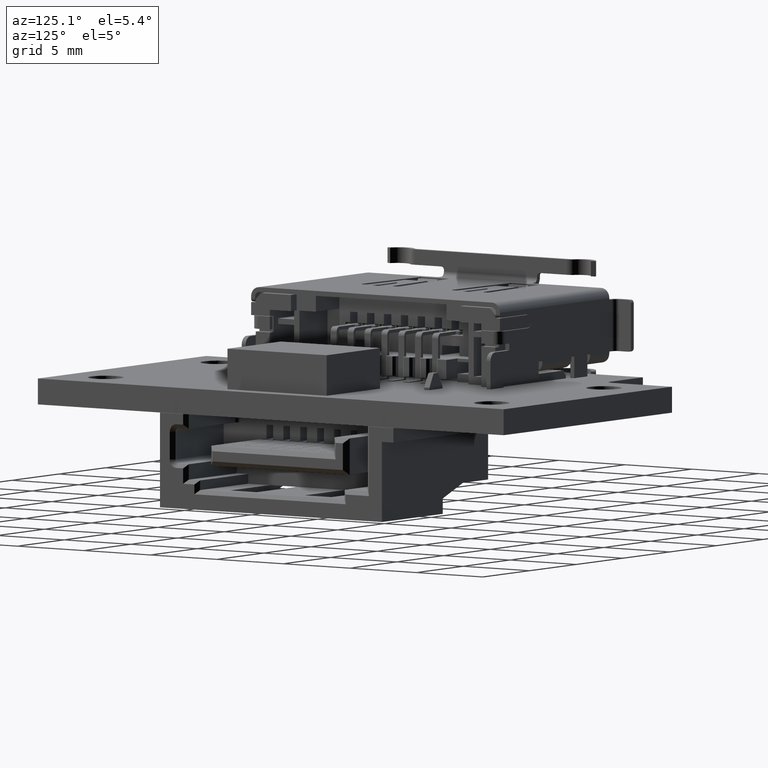
[diagram: clean part render]
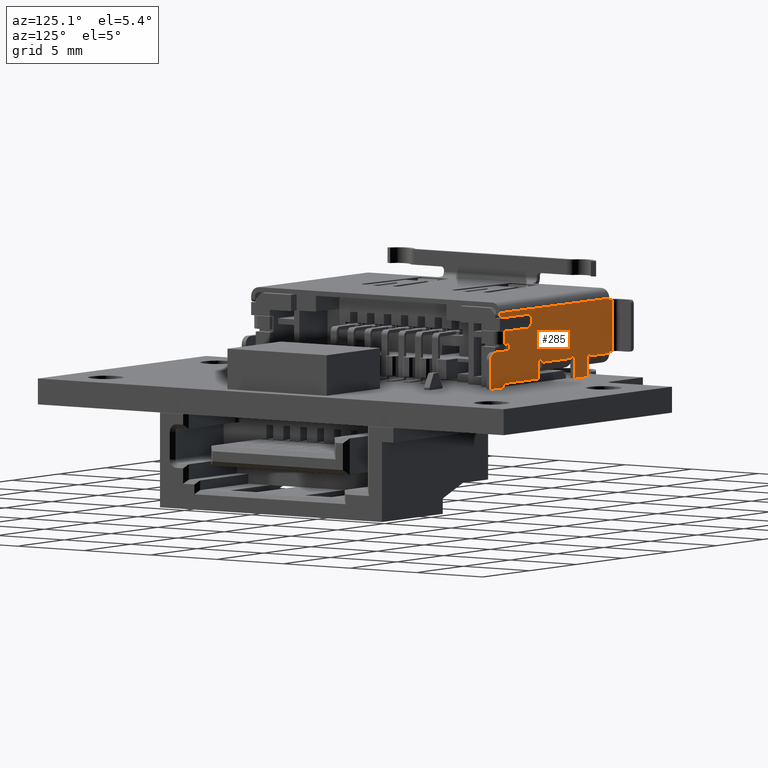
[diagram: same view with one face highlighted and labeled with its STEP entity id]
A machine part, auxiliary view. The second image highlights one B-rep face of the part: STEP entity #285.
In plain terms, the highlighted planar face has unit normal (0, 1, 0).
Its self-contained STEP definition (entity closure, byte-faithful):
#285=ADVANCED_FACE('',(#1627),#12393,.T.);
#1627=FACE_OUTER_BOUND('',#3090,.F.);
#3090=EDGE_LOOP('',(#4772,#4773,#4774,#4775,#4776,#4777,#4778,#4779,#4780,
#4781,#4782,#4783,#4784,#4785,#4786,#4787,#4788,#4789,#4790,#4791,#4792,
#4793,#4794,#4795,#4796,#4797,#4798,#4799,#4800,#4801,#4802));
#4772=ORIENTED_EDGE('',*,*,#14475,.F.);
#4773=ORIENTED_EDGE('',*,*,#14476,.F.);
#4774=ORIENTED_EDGE('',*,*,#14477,.T.);
#4775=ORIENTED_EDGE('',*,*,#14478,.T.);
#4776=ORIENTED_EDGE('',*,*,#14479,.T.);
#4777=ORIENTED_EDGE('',*,*,#14480,.F.);
#4778=ORIENTED_EDGE('',*,*,#14481,.F.);
#4779=ORIENTED_EDGE('',*,*,#14482,.T.);
#4780=ORIENTED_EDGE('',*,*,#14483,.T.);
#4781=ORIENTED_EDGE('',*,*,#14424,.T.);
#4782=ORIENTED_EDGE('',*,*,#14440,.T.);
#4783=ORIENTED_EDGE('',*,*,#14484,.F.);
#4784=ORIENTED_EDGE('',*,*,#14082,.F.);
#4785=ORIENTED_EDGE('',*,*,#14486,.T.);
#4786=ORIENTED_EDGE('',*,*,#14487,.T.);
#4787=ORIENTED_EDGE('',*,*,#14488,.F.);
#4788=ORIENTED_EDGE('',*,*,#14489,.T.);
#4789=ORIENTED_EDGE('',*,*,#14490,.T.);
#4790=ORIENTED_EDGE('',*,*,#14491,.F.);
#4791=ORIENTED_EDGE('',*,*,#14492,.F.);
#4792=ORIENTED_EDGE('',*,*,#14493,.F.);
#4793=ORIENTED_EDGE('',*,*,#14076,.F.);
#4794=ORIENTED_EDGE('',*,*,#14495,.F.);
#4795=ORIENTED_EDGE('',*,*,#14496,.F.);
#4796=ORIENTED_EDGE('',*,*,#14497,.F.);
#4797=ORIENTED_EDGE('',*,*,#14498,.T.);
#4798=ORIENTED_EDGE('',*,*,#14499,.F.);
#4799=ORIENTED_EDGE('',*,*,#14500,.F.);
#4800=ORIENTED_EDGE('',*,*,#14501,.T.);
#4801=ORIENTED_EDGE('',*,*,#14502,.T.);
#4802=ORIENTED_EDGE('',*,*,#14503,.T.);
#12393=PLANE('',#27955);
#13565=CIRCLE('',#27562,0.15);
#13578=CIRCLE('',#27575,0.2);
#13580=CIRCLE('',#27577,0.15);
#13581=CIRCLE('',#27578,0.2);
#13583=CIRCLE('',#27580,0.5);
#13584=CIRCLE('',#27581,0.425);
#14076=EDGE_CURVE('',#27354,#27353,#18040,.T.);
#14082=EDGE_CURVE('',#27347,#27348,#18046,.T.);
#14424=EDGE_CURVE('',#27072,#27073,#18358,.T.);
#14440=EDGE_CURVE('',#27073,#27059,#13565,.T.);
#14475=EDGE_CURVE('',#27034,#27033,#13578,.T.);
#14476=EDGE_CURVE('',#27032,#27034,#18392,.T.);
#14477=EDGE_CURVE('',#27032,#27031,#18393,.T.);
#14478=EDGE_CURVE('',#27031,#27030,#18394,.T.);
#14479=EDGE_CURVE('',#27030,#27029,#18395,.T.);
#14480=EDGE_CURVE('',#27028,#27029,#18396,.T.);
#14481=EDGE_CURVE('',#27027,#27028,#18397,.T.);
#14482=EDGE_CURVE('',#27027,#27026,#18398,.T.);
#14483=EDGE_CURVE('',#27026,#27072,#18399,.T.);
#14484=EDGE_CURVE('',#27348,#27059,#18400,.T.);
#14486=EDGE_CURVE('',#27347,#27025,#18401,.T.);
#14487=EDGE_CURVE('',#27025,#27024,#13580,.T.);
#14488=EDGE_CURVE('',#27023,#27024,#18402,.T.);
#14489=EDGE_CURVE('',#27023,#27022,#18403,.T.);
#14490=EDGE_CURVE('',#27022,#27021,#13581,.T.);
#14491=EDGE_CURVE('',#27020,#27021,#18404,.T.);
#14492=EDGE_CURVE('',#27019,#27020,#18405,.T.);
#14493=EDGE_CURVE('',#27353,#27019,#18406,.T.);
#14495=EDGE_CURVE('',#27018,#27354,#18407,.T.);
#14496=EDGE_CURVE('',#27017,#27018,#13583,.T.);
#14497=EDGE_CURVE('',#27016,#27017,#18408,.T.);
#14498=EDGE_CURVE('',#27016,#27015,#18409,.T.);
#14499=EDGE_CURVE('',#27014,#27015,#18410,.T.);
#14500=EDGE_CURVE('',#27013,#27014,#18411,.T.);
#14501=EDGE_CURVE('',#27013,#27012,#18412,.T.);
#14502=EDGE_CURVE('',#27012,#27011,#13584,.T.);
#14503=EDGE_CURVE('',#27011,#27033,#18413,.T.);
#18040=LINE('',#38951,#21560);
#18046=LINE('',#38957,#21566);
#18358=LINE('',#39299,#21878);
#18392=LINE('',#39351,#21912);
#18393=LINE('',#39352,#21913);
#18394=LINE('',#39353,#21914);
#18395=LINE('',#39354,#21915);
#18396=LINE('',#39355,#21916);
#18397=LINE('',#39356,#21917);
#18398=LINE('',#39357,#21918);
#18399=LINE('',#39358,#21919);
#18400=LINE('',#39359,#21920);
#18401=LINE('',#39361,#21921);
#18402=LINE('',#39363,#21922);
#18403=LINE('',#39364,#21923);
#18404=LINE('',#39366,#21924);
#18405=LINE('',#39367,#21925);
#18406=LINE('',#39368,#21926);
#18407=LINE('',#39370,#21927);
#18408=LINE('',#39372,#21928);
#18409=LINE('',#39373,#21929);
#18410=LINE('',#39374,#21930);
#18411=LINE('',#39375,#21931);
#18412=LINE('',#39376,#21932);
#18413=LINE('',#39378,#21933);
#21560=VECTOR('',#29409,1.39999999999999);
#21566=VECTOR('',#29415,1.39999999999999);
#21878=VECTOR('',#29787,0.0499999999999989);
#21912=VECTOR('',#29857,0.124999999999899);
#21913=VECTOR('',#29858,11.7);
#21914=VECTOR('',#29859,0.0999999999999002);
#21915=VECTOR('',#29860,0.299999999999997);
#21916=VECTOR('',#29861,3.2);
#21917=VECTOR('',#29862,0.299999999999997);
#21918=VECTOR('',#29863,0.0999999999999996);
#21919=VECTOR('',#29864,2.05000000000001);
#21920=VECTOR('',#29865,1.3);
#21921=VECTOR('',#29868,1.3);
#21922=VECTOR('',#29871,0.0499999999999989);
#21923=VECTOR('',#29872,3.09999999999999);
#21924=VECTOR('',#29875,1.);
#21925=VECTOR('',#29876,3.75);
#21926=VECTOR('',#29877,0.249999999999999);
#21927=VECTOR('',#29880,1.75);
#21928=VECTOR('',#29883,1.5);
#21929=VECTOR('',#29884,0.424999999999999);
#21930=VECTOR('',#29885,0.499999999999901);
#21931=VECTOR('',#29886,0.800000000000001);
#21932=VECTOR('',#29887,2.47499999999989);
#21933=VECTOR('',#29890,2.77500000000001);
#27011=VERTEX_POINT('',#38326);
#27012=VERTEX_POINT('',#38327);
#27013=VERTEX_POINT('',#38328);
#27014=VERTEX_POINT('',#38329);
#27015=VERTEX_POINT('',#38330);
#27016=VERTEX_POINT('',#38331);
#27017=VERTEX_POINT('',#38332);
#27018=VERTEX_POINT('',#38333);
#27019=VERTEX_POINT('',#38334);
#27020=VERTEX_POINT('',#38335);
#27021=VERTEX_POINT('',#38336);
#27022=VERTEX_POINT('',#38337);
#27023=VERTEX_POINT('',#38338);
#27024=VERTEX_POINT('',#38339);
#27025=VERTEX_POINT('',#38340);
#27026=VERTEX_POINT('',#38341);
#27027=VERTEX_POINT('',#38342);
#27028=VERTEX_POINT('',#38343);
#27029=VERTEX_POINT('',#38344);
#27030=VERTEX_POINT('',#38345);
#27031=VERTEX_POINT('',#38346);
#27032=VERTEX_POINT('',#38347);
#27033=VERTEX_POINT('',#38348);
#27034=VERTEX_POINT('',#38349);
#27059=VERTEX_POINT('',#38374);
#27072=VERTEX_POINT('',#38387);
#27073=VERTEX_POINT('',#38388);
#27347=VERTEX_POINT('',#38662);
#27348=VERTEX_POINT('',#38663);
#27353=VERTEX_POINT('',#38668);
#27354=VERTEX_POINT('',#38669);
#27562=AXIS2_PLACEMENT_3D('',#39315,#29807,#29808);
#27575=AXIS2_PLACEMENT_3D('',#39350,#29855,#29856);
#27577=AXIS2_PLACEMENT_3D('',#39362,#29869,#29870);
#27578=AXIS2_PLACEMENT_3D('',#39365,#29873,#29874);
#27580=AXIS2_PLACEMENT_3D('',#39371,#29881,#29882);
#27581=AXIS2_PLACEMENT_3D('',#39377,#29888,#29889);
#27955=AXIS2_PLACEMENT_3D('',#43073,#33646,#33647);
#29409=DIRECTION('',(-1.,0.,0.));
#29415=DIRECTION('',(-1.,0.,0.));
#29787=DIRECTION('',(0.,0.,1.));
#29807=DIRECTION('',(0.,1.,0.));
#29808=DIRECTION('',(-1.,0.,0.));
#29855=DIRECTION('',(0.,1.,0.));
#29856=DIRECTION('',(1.,0.,0.));
#29857=DIRECTION('',(0.,0.,-1.));
#29858=DIRECTION('',(-1.,0.,0.));
#29859=DIRECTION('',(0.,0.,-1.));
#29860=DIRECTION('',(-1.,0.,0.));
#29861=DIRECTION('',(0.,0.,1.));
#29862=DIRECTION('',(-1.,0.,0.));
#29863=DIRECTION('',(0.,0.,-1.));
#29864=DIRECTION('',(1.,0.,0.));
#29865=DIRECTION('',(0.,0.,1.));
#29868=DIRECTION('',(0.,0.,1.));
#29869=DIRECTION('',(0.,1.,0.));
#29870=DIRECTION('',(-1.,0.,0.));
#29871=DIRECTION('',(0.,0.,1.));
#29872=DIRECTION('',(1.,0.,0.));
#29873=DIRECTION('',(0.,1.,0.));
#29874=DIRECTION('',(-1.,0.,0.));
#29875=DIRECTION('',(0.,0.,1.));
#29876=DIRECTION('',(-1.,0.,0.));
#29877=DIRECTION('',(0.,0.,1.));
#29880=DIRECTION('',(0.,0.,-1.));
#29881=DIRECTION('',(0.,1.,0.));
#29882=DIRECTION('',(0.,0.,1.));
#29883=DIRECTION('',(1.,0.,0.));
#29884=DIRECTION('',(0.,0.,1.));
#29885=DIRECTION('',(-1.,0.,0.));
#29886=DIRECTION('',(0.,0.,-1.));
#29887=DIRECTION('',(-1.,0.,0.));
#29888=DIRECTION('',(0.,1.,0.));
#29889=DIRECTION('',(0.,0.,-1.));
#29890=DIRECTION('',(1.,0.,0.));
#33646=DIRECTION('',(0.,1.,0.));
#33647=DIRECTION('',(0.,0.,-1.));
#38326=CARTESIAN_POINT('',(-74.1750000000126,9.35000000000029,11.4250002321153));
#38327=CARTESIAN_POINT('',(-74.1750000000126,9.35000000000029,10.5750002321153));
#38328=CARTESIAN_POINT('',(-71.7000000000127,9.35000000000029,10.5750002321153));
#38329=CARTESIAN_POINT('',(-71.7000000000127,9.35000000000029,9.77500023211529));
#38330=CARTESIAN_POINT('',(-72.2000000000126,9.35000000000029,9.77500023211529));
#38331=CARTESIAN_POINT('',(-72.2000000000126,9.35000000000029,9.35000023211529));
#38332=CARTESIAN_POINT('',(-70.7000000000126,9.35000000000029,9.35000023211529));
#38333=CARTESIAN_POINT('',(-70.2000000000126,9.35000000000029,8.85000023211529));
#38334=CARTESIAN_POINT('',(-71.6000000000126,9.35000000000029,7.35000023211529));
#38335=CARTESIAN_POINT('',(-75.3500000000126,9.35000000000029,7.35000023211529));
#38336=CARTESIAN_POINT('',(-75.3500000000126,9.35000000000029,8.35000023211529));
#38337=CARTESIAN_POINT('',(-75.7500000000126,9.35000000000029,8.35000023211529));
#38338=CARTESIAN_POINT('',(-78.8500000000126,9.35000000000029,8.35000023211529));
#38339=CARTESIAN_POINT('',(-78.8500000000126,9.35000000000029,8.40000023211529));
#38340=CARTESIAN_POINT('',(-79.1500000000126,9.35000000000029,8.40000023211529));
#38341=CARTESIAN_POINT('',(-82.9000000000126,9.35000000000029,8.35000023211529));
#38342=CARTESIAN_POINT('',(-82.9000000000126,9.35000000000029,8.45000023211529));
#38343=CARTESIAN_POINT('',(-83.2000000000126,9.35000000000029,8.45000023211529));
#38344=CARTESIAN_POINT('',(-83.2000000000126,9.35000000000029,11.6500002321153));
#38345=CARTESIAN_POINT('',(-82.9000000000126,9.35000000000029,11.6500002321153));
#38346=CARTESIAN_POINT('',(-82.9000000000126,9.35000000000029,11.7500002321152));
#38347=CARTESIAN_POINT('',(-71.2000000000126,9.35000000000029,11.7500002321152));
#38348=CARTESIAN_POINT('',(-71.4000000000126,9.35000000000029,11.4250002321153));
#38349=CARTESIAN_POINT('',(-71.2000000000126,9.35000000000029,11.6250002321153));
#38374=CARTESIAN_POINT('',(-80.5500000000126,9.35000000000029,8.40000023211529));
#38387=CARTESIAN_POINT('',(-80.8500000000126,9.35000000000029,8.35000023211529));
#38388=CARTESIAN_POINT('',(-80.8500000000126,9.35000000000029,8.40000023211529));
#38662=CARTESIAN_POINT('',(-79.1500000000126,9.35000000000029,7.10000023211529));
#38663=CARTESIAN_POINT('',(-80.5500000000126,9.35000000000029,7.10000023211529));
#38668=CARTESIAN_POINT('',(-71.6000000000126,9.3500000000003,7.10000023211529));
#38669=CARTESIAN_POINT('',(-70.2000000000126,9.3500000000003,7.10000023211529));
#38951=CARTESIAN_POINT('',(-70.2000000000126,9.35000000000029,7.10000023211529));
#38957=CARTESIAN_POINT('',(-79.1500000000126,9.35000000000029,7.10000023211529));
#39299=CARTESIAN_POINT('',(-80.8500000000126,9.35000000000029,8.35000023211529));
#39315=CARTESIAN_POINT('',(-80.7000000000126,9.35000000000029,8.40000023211529));
#39350=CARTESIAN_POINT('',(-71.4000000000126,9.35000000000029,11.6250002321153));
#39351=CARTESIAN_POINT('',(-71.2000000000126,9.35000000000029,11.7500002321152));
#39352=CARTESIAN_POINT('',(-71.2000000000126,9.35000000000029,11.7500002321152));
#39353=CARTESIAN_POINT('',(-82.9000000000126,9.35000000000029,11.7500002321152));
#39354=CARTESIAN_POINT('',(-82.9000000000126,9.35000000000029,11.6500002321153));
#39355=CARTESIAN_POINT('',(-83.2000000000126,9.35000000000029,8.45000023211529));
#39356=CARTESIAN_POINT('',(-82.9000000000126,9.35000000000029,8.45000023211529));
#39357=CARTESIAN_POINT('',(-82.9000000000126,9.35000000000029,8.45000023211529));
#39358=CARTESIAN_POINT('',(-82.9000000000126,9.35000000000029,8.35000023211529));
#39359=CARTESIAN_POINT('',(-80.5500000000126,9.35000000000029,7.10000023211529));
#39361=CARTESIAN_POINT('',(-79.1500000000126,9.35000000000029,7.10000023211529));
#39362=CARTESIAN_POINT('',(-79.0000000000126,9.35000000000029,8.40000023211529));
#39363=CARTESIAN_POINT('',(-78.8500000000126,9.35000000000029,8.35000023211529));
#39364=CARTESIAN_POINT('',(-78.8500000000126,9.35000000000029,8.35000023211529));
#39365=CARTESIAN_POINT('',(-75.5500000000126,9.35000000000029,8.35000023211529));
#39366=CARTESIAN_POINT('',(-75.3500000000126,9.35000000000029,7.35000023211529));
#39367=CARTESIAN_POINT('',(-71.6000000000126,9.35000000000029,7.35000023211529));
#39368=CARTESIAN_POINT('',(-71.6000000000126,9.3500000000003,7.10000023211529));
#39370=CARTESIAN_POINT('',(-70.2000000000126,9.35000000000029,8.85000023211529));
#39371=CARTESIAN_POINT('',(-70.7000000000126,9.35000000000029,8.85000023211529));
#39372=CARTESIAN_POINT('',(-72.2000000000126,9.35000000000029,9.35000023211529));
#39373=CARTESIAN_POINT('',(-72.2000000000126,9.35000000000029,9.35000023211529));
#39374=CARTESIAN_POINT('',(-71.7000000000127,9.35000000000029,9.77500023211529));
#39375=CARTESIAN_POINT('',(-71.7000000000127,9.35000000000029,10.5750002321153));
#39376=CARTESIAN_POINT('',(-71.7000000000127,9.35000000000029,10.5750002321153));
#39377=CARTESIAN_POINT('',(-74.1750000000126,9.35000000000029,11.0000002321153));
#39378=CARTESIAN_POINT('',(-74.1750000000126,9.35000000000029,11.4250002321153));
#43073=CARTESIAN_POINT('',(-69.5500000000126,9.35000000000029,12.4000002321152));